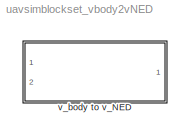
MODEL uavsimblockset_vbody2vNED
KIND library
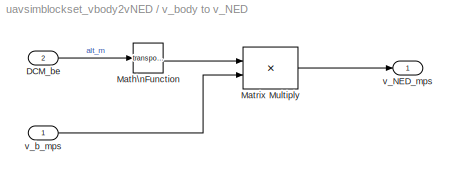
BLOCK [SubSystem] v_body to v_NED
  Ports = [2, 1]
  RequestExecContextInheritance = off
  SID = 2609
BLOCK [Inport] v_body to v_NED/DCM_be
  IconDisplay = Port number
  Port = 2
  SID = 2611
BLOCK [Math] v_body to v_NED/Math\nFunction
  Operator = transpose
  Ports = [1, 1]
  SID = 4427
BLOCK [Product] v_body to v_NED/Matrix Multiply
  InputSameDT = off
  Multiplication = Matrix(*)
  OutDataTypeStr = Inherit: Inherit via internal rule
  Ports = [2, 1]
  RndMeth = Floor
  SID = 2612
  SaturateOnIntegerOverflow = off
BLOCK [Outport] v_body to v_NED/v_NED_mps
  IconDisplay = Port number
  SID = 2614
BLOCK [Inport] v_body to v_NED/v_b_mps
  IconDisplay = Port number
  SID = 2610
LINE v_body to v_NED/DCM_be:1 -> v_body to v_NED/Math\nFunction:1
LINE v_body to v_NED/Math\nFunction:1 -> v_body to v_NED/Matrix Multiply:1
LINE v_body to v_NED/Matrix Multiply:1 -> v_body to v_NED/v_NED_mps:1
LINE v_body to v_NED/v_b_mps:1 -> v_body to v_NED/Matrix Multiply:2
